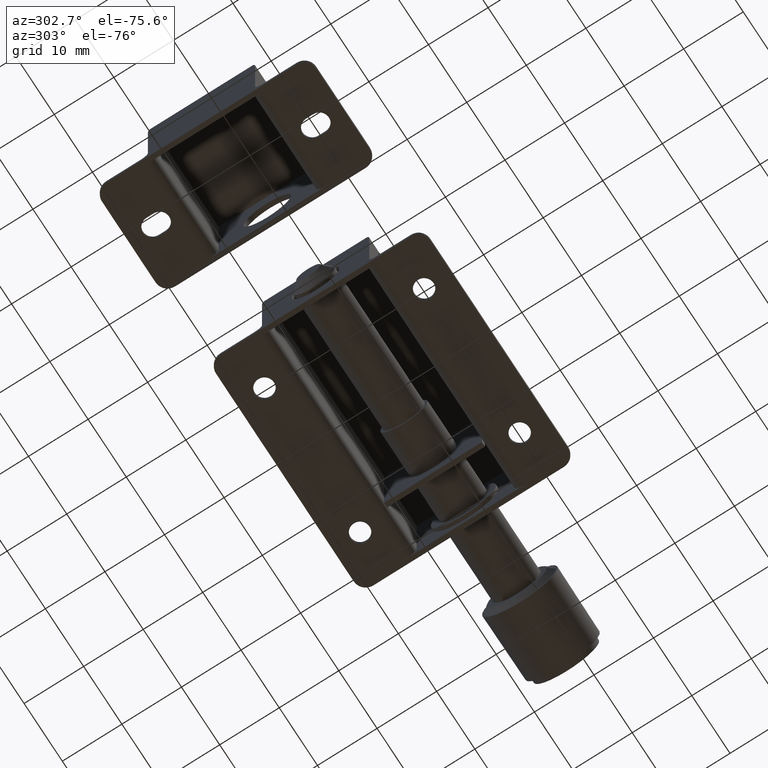
[diagram: clean part render]
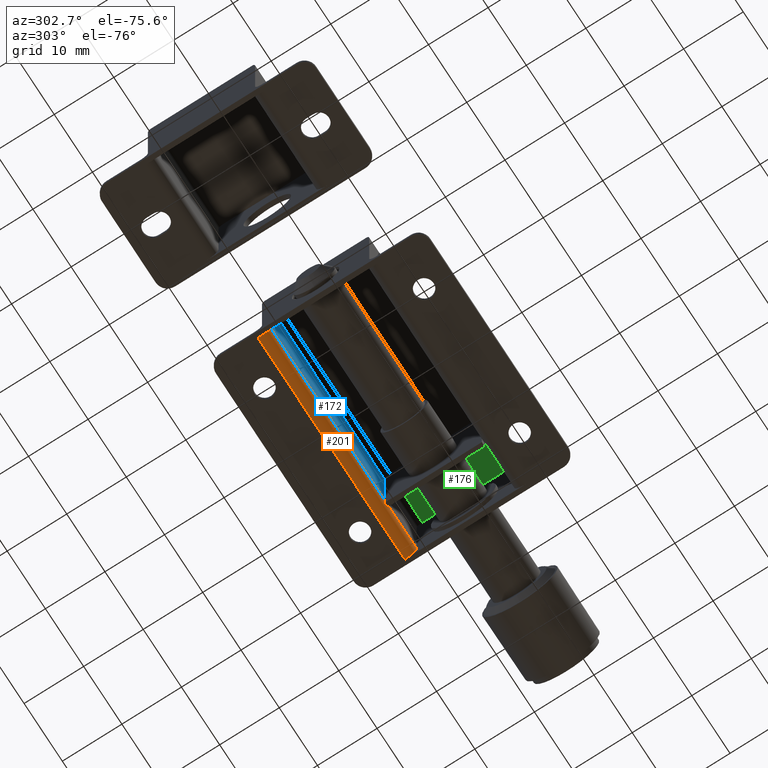
[diagram: same view with three faces highlighted in distinct colors, each labeled with its STEP entity id]
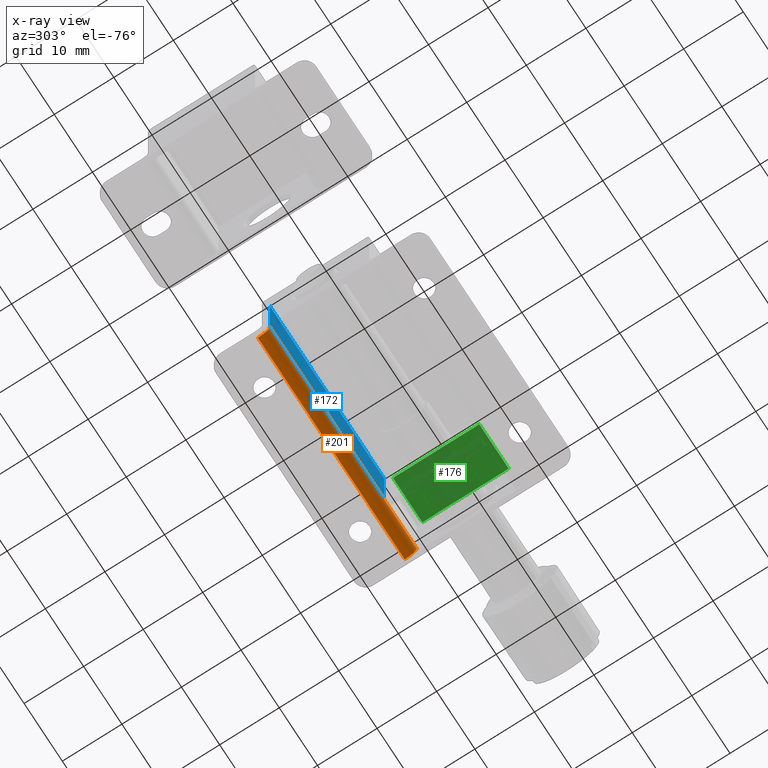
[diagram: x-ray of the same camera — body ghosted, the three highlighted faces saturated]
A machine part, auxiliary view with three faces highlighted in distinct colors.
The next image is the same camera in x-ray (body ghosted, the three faces saturated) — at least one of them is partly hidden behind the body in this view.
Their STEP definitions:

[orange] entity #201 — the highlighted cylindrical surface (edge-blend (fillet) strip) has radius 2 mm, axis along (-1, -0, -0).
#201=ADVANCED_FACE('',(#816),#815,.T.);
#815=CYLINDRICAL_SURFACE('',#1931,2.00000000000E+00);
#816=FACE_OUTER_BOUND('',#1932,.T.);
#1928=CARTESIAN_POINT('',(-9.67500000000E+02,2.36000000000E+01,1.20000000000E+00));
#1929=DIRECTION('',(-1.00000000000E+00,-0.00000000000E+00,-0.00000000000E+00));
#1930=DIRECTION('',(-0.00000000000E+00,-0.00000000000E+00,1.00000000000E+00));
#1931=AXIS2_PLACEMENT_3D('',#1928,#1929,#1930);
#1932=EDGE_LOOP('',(#2663,#2664,#2665,#2666,#2667,#2668));
#2663=ORIENTED_EDGE('',*,*,#3192,.T.);
#2664=ORIENTED_EDGE('',*,*,#3153,.F.);
#2665=ORIENTED_EDGE('',*,*,#3175,.F.);
#2666=ORIENTED_EDGE('',*,*,#3144,.F.);
#2667=ORIENTED_EDGE('',*,*,#3195,.F.);
#2668=ORIENTED_EDGE('',*,*,#3073,.T.);
#3073=EDGE_CURVE('',#3640,#3641,#3642,.T.);
#3144=EDGE_CURVE('',#4113,#4106,#4120,.T.);
#3153=EDGE_CURVE('',#4174,#4181,#4182,.T.);
#3175=EDGE_CURVE('',#4106,#4174,#4326,.T.);
#3192=EDGE_CURVE('',#3641,#4181,#4432,.T.);
#3195=EDGE_CURVE('',#3640,#4113,#4452,.T.);
#3640=VERTEX_POINT('',#5777);
#3641=VERTEX_POINT('',#5778);
#3642=LINE('',#5779,#5780);
#4106=VERTEX_POINT('',#6076);
#4113=VERTEX_POINT('',#6080);
#4120=LINE('',#6084,#6085);
#4174=VERTEX_POINT('',#6116);
#4181=VERTEX_POINT('',#6120);
#4182=LINE('',#6121,#6122);
#4326=LINE('',#6207,#6208);
#4432=CIRCLE('',#6276,2.00000000000E+00);
#4452=CIRCLE('',#6290,2.00000000000E+00);
#5777=CARTESIAN_POINT('',(-6.70000000000E+00,2.36000000000E+01,-8.00000000000E-01));
#5778=CARTESIAN_POINT('',(3.17000000000E+01,2.36000000000E+01,-8.00000000000E-01));
#5779=CARTESIAN_POINT('',(-6.70000000000E+00,2.36000000000E+01,-8.00000000000E-01));
#5780=VECTOR('',#5781,3.84000000000E+01);
#5781=DIRECTION('',(1.00000000000E+00,0.00000000000E+00,0.00000000000E+00));
#6076=CARTESIAN_POINT('',(2.32000000000E+01,2.16000000000E+01,1.20000000000E+00));
#6080=CARTESIAN_POINT('',(-6.70000000000E+00,2.16000000000E+01,1.20000000000E+00));
#6084=CARTESIAN_POINT('',(-6.70000000000E+00,2.16000000000E+01,1.20000000000E+00));
#6085=VECTOR('',#6086,2.99000000000E+01);
#6086=DIRECTION('',(1.00000000000E+00,0.00000000000E+00,0.00000000000E+00));
#6116=CARTESIAN_POINT('',(2.40000000000E+01,2.16000000000E+01,1.20000000000E+00));
#6120=CARTESIAN_POINT('',(3.17000000000E+01,2.16000000000E+01,1.20000000000E+00));
#6121=CARTESIAN_POINT('',(2.40000000000E+01,2.16000000000E+01,1.20000000000E+00));
#6122=VECTOR('',#6123,7.70000000000E+00);
#6123=DIRECTION('',(1.00000000000E+00,0.00000000000E+00,0.00000000000E+00));
#6207=CARTESIAN_POINT('',(2.32000000000E+01,2.16000000000E+01,1.20000000000E+00));
#6208=VECTOR('',#6209,8.00000000000E-01);
#6209=DIRECTION('',(1.00000000000E+00,0.00000000000E+00,0.00000000000E+00));
#6273=CARTESIAN_POINT('',(3.17000000000E+01,2.36000000000E+01,1.20000000000E+00));
#6274=DIRECTION('',(-1.00000000000E+00,-0.00000000000E+00,0.00000000000E+00));
#6275=DIRECTION('',(0.00000000000E+00,-0.00000000000E+00,1.00000000000E+00));
#6276=AXIS2_PLACEMENT_3D('',#6273,#6274,#6275);
#6287=CARTESIAN_POINT('',(-6.70000000000E+00,2.36000000000E+01,1.20000000000E+00));
#6288=DIRECTION('',(-1.00000000000E+00,-0.00000000000E+00,0.00000000000E+00));
#6289=DIRECTION('',(0.00000000000E+00,-0.00000000000E+00,1.00000000000E+00));
#6290=AXIS2_PLACEMENT_3D('',#6287,#6288,#6289);

[blue] entity #172 — the highlighted planar face has unit normal (0, -1, 0).
#172=ADVANCED_FACE('',(#520),#519,.T.);
#519=PLANE('',#1780);
#520=FACE_OUTER_BOUND('',#1781,.T.);
#1777=CARTESIAN_POINT('',(-9.69000000000E+00,2.16000000000E+01,1.42350000000E+01));
#1778=DIRECTION('',(0.00000000000E+00,-1.00000000000E+00,0.00000000000E+00));
#1779=DIRECTION('',(0.00000000000E+00,0.00000000000E+00,-1.00000000000E+00));
#1780=AXIS2_PLACEMENT_3D('',#1777,#1778,#1779);
#1781=EDGE_LOOP('',(#2519,#2520,#2521,#2522));
#2519=ORIENTED_EDGE('',*,*,#3142,.F.);
#2520=ORIENTED_EDGE('',*,*,#3141,.F.);
#2521=ORIENTED_EDGE('',*,*,#3143,.T.);
#2522=ORIENTED_EDGE('',*,*,#3144,.T.);
#3141=EDGE_CURVE('',#4093,#4079,#4100,.T.);
#3142=EDGE_CURVE('',#4079,#4106,#4107,.T.);
#3143=EDGE_CURVE('',#4093,#4113,#4114,.T.);
#3144=EDGE_CURVE('',#4113,#4106,#4120,.T.);
#4079=VERTEX_POINT('',#6059);
#4093=VERTEX_POINT('',#6068);
#4100=LINE('',#6073,#6074);
#4106=VERTEX_POINT('',#6076);
#4107=LINE('',#6077,#6078);
#4113=VERTEX_POINT('',#6080);
#4114=LINE('',#6081,#6082);
#4120=LINE('',#6084,#6085);
#6059=CARTESIAN_POINT('',(2.32000000000E+01,2.16000000000E+01,1.30500000000E+01));
#6068=CARTESIAN_POINT('',(-6.70000000000E+00,2.16000000000E+01,1.30500000000E+01));
#6073=CARTESIAN_POINT('',(-6.70000000000E+00,2.16000000000E+01,1.30500000000E+01));
#6074=VECTOR('',#6075,2.99000000000E+01);
#6075=DIRECTION('',(1.00000000000E+00,0.00000000000E+00,0.00000000000E+00));
#6076=CARTESIAN_POINT('',(2.32000000000E+01,2.16000000000E+01,1.20000000000E+00));
#6077=CARTESIAN_POINT('',(2.32000000000E+01,2.16000000000E+01,1.30500000000E+01));
#6078=VECTOR('',#6079,1.18500000000E+01);
#6079=DIRECTION('',(0.00000000000E+00,0.00000000000E+00,-1.00000000000E+00));
#6080=CARTESIAN_POINT('',(-6.70000000000E+00,2.16000000000E+01,1.20000000000E+00));
#6081=CARTESIAN_POINT('',(-6.70000000000E+00,2.16000000000E+01,1.30500000000E+01));
#6082=VECTOR('',#6083,1.18500000000E+01);
#6083=DIRECTION('',(0.00000000000E+00,0.00000000000E+00,-1.00000000000E+00));
#6084=CARTESIAN_POINT('',(-6.70000000000E+00,2.16000000000E+01,1.20000000000E+00));
#6085=VECTOR('',#6086,2.99000000000E+01);
#6086=DIRECTION('',(1.00000000000E+00,0.00000000000E+00,0.00000000000E+00));

[green] entity #176 — the highlighted planar face has unit normal (0, 0, -1).
#176=ADVANCED_FACE('',(#560),#559,.T.);
#559=PLANE('',#1800);
#560=FACE_OUTER_BOUND('',#1801,.T.);
#1797=CARTESIAN_POINT('',(2.32300000000E+01,4.70000000000E+00,1.40000000000E+01));
#1798=DIRECTION('',(0.00000000000E+00,4.84167303950E-13,-1.00000000000E+00));
#1799=DIRECTION('',(0.00000000000E+00,1.00000000000E+00,4.84167303950E-13));
#1800=AXIS2_PLACEMENT_3D('',#1797,#1798,#1799);
#1801=EDGE_LOOP('',(#2535,#2536,#2537,#2538));
#2535=ORIENTED_EDGE('',*,*,#3155,.F.);
#2536=ORIENTED_EDGE('',*,*,#3156,.T.);
#2537=ORIENTED_EDGE('',*,*,#3148,.T.);
#2538=ORIENTED_EDGE('',*,*,#3157,.F.);
#3148=EDGE_CURVE('',#4146,#4147,#4148,.T.);
#3155=EDGE_CURVE('',#4194,#4195,#4196,.T.);
#3156=EDGE_CURVE('',#4194,#4146,#4202,.T.);
#3157=EDGE_CURVE('',#4195,#4147,#4208,.T.);
#4146=VERTEX_POINT('',#6098);
#4147=VERTEX_POINT('',#6099);
#4148=LINE('',#6100,#6101);
#4194=VERTEX_POINT('',#6127);
#4195=VERTEX_POINT('',#6128);
#4196=LINE('',#6129,#6130);
#4202=LINE('',#6132,#6133);
#4208=LINE('',#6135,#6136);
#6098=CARTESIAN_POINT('',(2.40000000000E+01,2.06500000000E+01,1.40000000000E+01));
#6099=CARTESIAN_POINT('',(3.17000000000E+01,2.06500000000E+01,1.40000000000E+01));
#6100=CARTESIAN_POINT('',(2.40000000000E+01,2.06500000000E+01,1.40000000000E+01));
#6101=VECTOR('',#6102,7.70000000000E+00);
#6102=DIRECTION('',(1.00000000000E+00,0.00000000000E+00,0.00000000000E+00));
#6127=CARTESIAN_POINT('',(2.40000000000E+01,6.15000000000E+00,1.40000000000E+01));
#6128=CARTESIAN_POINT('',(3.17000000000E+01,6.15000000000E+00,1.40000000000E+01));
#6129=CARTESIAN_POINT('',(2.40000000000E+01,6.15000000000E+00,1.40000000000E+01));
#6130=VECTOR('',#6131,7.70000000000E+00);
#6131=DIRECTION('',(1.00000000000E+00,0.00000000000E+00,0.00000000000E+00));
#6132=CARTESIAN_POINT('',(2.40000000000E+01,6.15000000000E+00,1.40000000000E+01));
#6133=VECTOR('',#6134,1.45000000000E+01);
#6134=DIRECTION('',(0.00000000000E+00,1.00000000000E+00,4.84149119263E-13));
#6135=CARTESIAN_POINT('',(3.17000000000E+01,6.15000000000E+00,1.40000000000E+01));
#6136=VECTOR('',#6137,1.45000000000E+01);
#6137=DIRECTION('',(0.00000000000E+00,1.00000000000E+00,4.84149119263E-13));